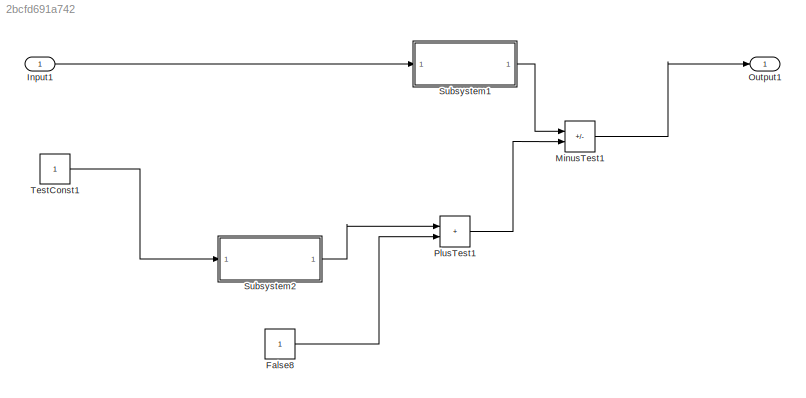
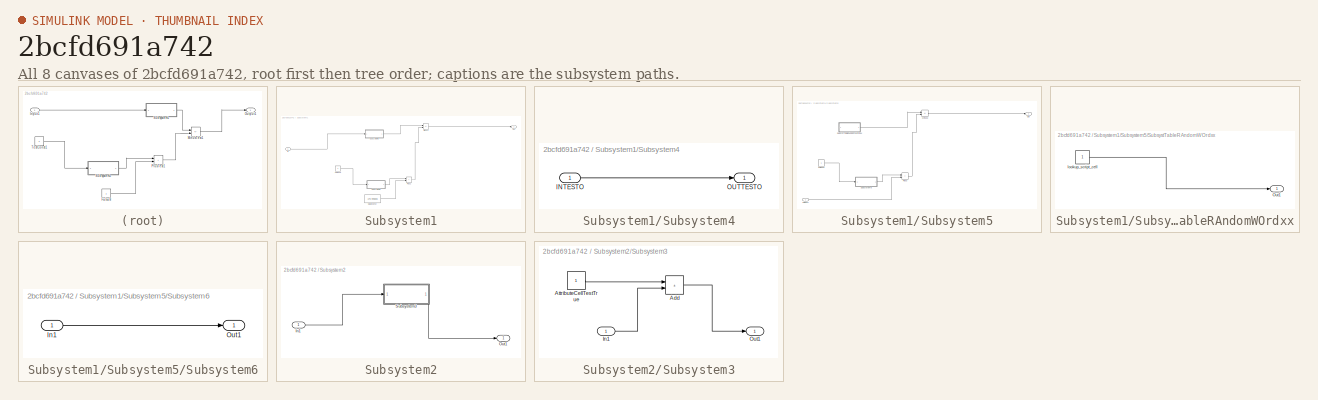
[diagram: thumbnail index - all 8 canvases of the model, root first then tree order]
MODEL slx_2bcfd691a742
KIND model
CONFIG AbsTol = auto
CONFIG EnableMultiTasking = off
CONFIG FixedStep = auto
CONFIG MaxStep = auto
CONFIG MinStep = auto
CONFIG RelTol = 1e-3
CONFIG SampleTimeConstraint = Unconstrained
CONFIG SolverName = VariableStepAuto
CONFIG StartTime = 0.0
CONFIG StopTime = 10.0
BLOCK [Constant] False8
BLOCK [Inport] Input1
BLOCK [Sum] MinusTest1
  IconShape = rectangular
  Inputs = +-
BLOCK [Outport] Output1
BLOCK [Sum] PlusTest1
  IconShape = rectangular
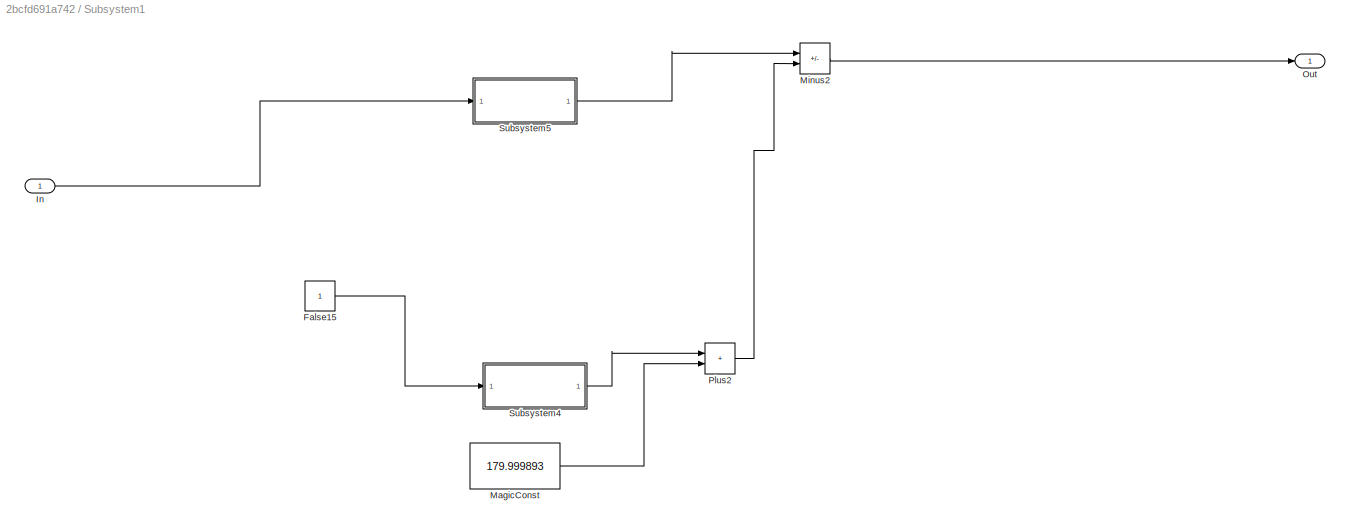
BLOCK [SubSystem] Subsystem1
BLOCK [Constant] Subsystem1/False15
BLOCK [Inport] Subsystem1/In
BLOCK [Constant] Subsystem1/MagicConst
  Value = 179.999893
BLOCK [Sum] Subsystem1/Minus2
  IconShape = rectangular
  Inputs = +-
BLOCK [Outport] Subsystem1/Out
BLOCK [Sum] Subsystem1/Plus2
  IconShape = rectangular
BLOCK [SubSystem] Subsystem1/Subsystem4
BLOCK [Inport] Subsystem1/Subsystem4/INTESTO
BLOCK [Outport] Subsystem1/Subsystem4/OUTTESTO
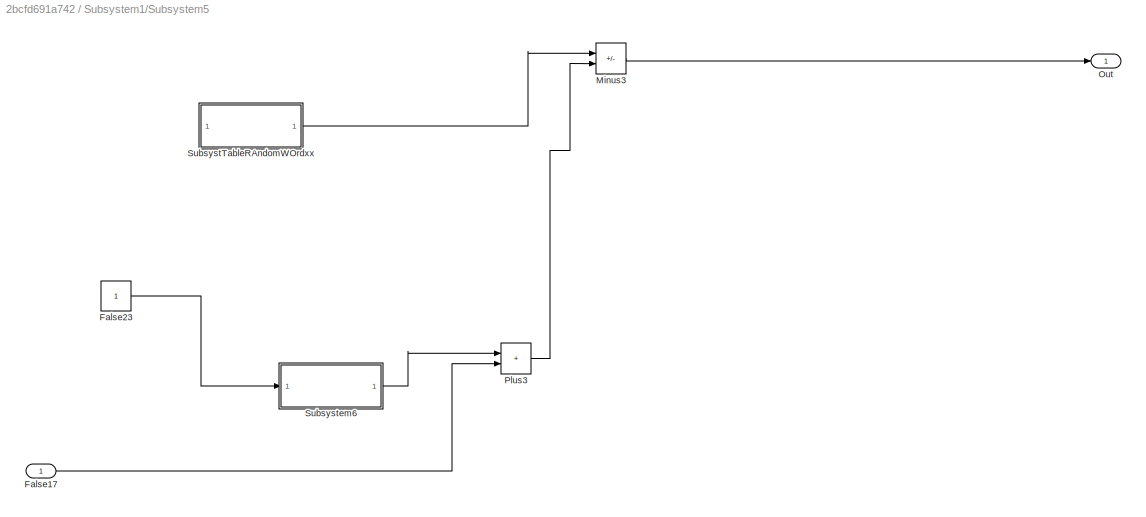
BLOCK [SubSystem] Subsystem1/Subsystem5
BLOCK [Inport] Subsystem1/Subsystem5/False17
BLOCK [Constant] Subsystem1/Subsystem5/False23
BLOCK [Sum] Subsystem1/Subsystem5/Minus3
  IconShape = rectangular
  Inputs = +-
BLOCK [Outport] Subsystem1/Subsystem5/Out
BLOCK [Sum] Subsystem1/Subsystem5/Plus3
  IconShape = rectangular
BLOCK [SubSystem] Subsystem1/Subsystem5/SubsystTableRAndomWOrdxx
BLOCK [Outport] Subsystem1/Subsystem5/SubsystTableRAndomWOrdxx/Out1
BLOCK [Constant] Subsystem1/Subsystem5/SubsystTableRAndomWOrdxx/lookup_script_cell
BLOCK [SubSystem] Subsystem1/Subsystem5/Subsystem6
BLOCK [Inport] Subsystem1/Subsystem5/Subsystem6/In1
BLOCK [Outport] Subsystem1/Subsystem5/Subsystem6/Out1
BLOCK [SubSystem] Subsystem2
BLOCK [Inport] Subsystem2/In1
BLOCK [Outport] Subsystem2/Out1
BLOCK [SubSystem] Subsystem2/Subsystem3
BLOCK [Sum] Subsystem2/Subsystem3/Add
  IconShape = rectangular
BLOCK [Constant] Subsystem2/Subsystem3/AttributeCellTestTrue
BLOCK [Inport] Subsystem2/Subsystem3/In1
BLOCK [Outport] Subsystem2/Subsystem3/Out1
BLOCK [Constant] TestConst1
LINE False8:1 -> PlusTest1:2
LINE Input1:1 -> Subsystem1:1
LINE MinusTest1:1 -> Output1:1
LINE PlusTest1:1 -> MinusTest1:2
LINE Subsystem1/False15:1 -> Subsystem1/Subsystem4:1
LINE Subsystem1/In:1 -> Subsystem1/Subsystem5:1
LINE Subsystem1/MagicConst:1 -> Subsystem1/Plus2:2
LINE Subsystem1/Minus2:1 -> Subsystem1/Out:1
LINE Subsystem1/Plus2:1 -> Subsystem1/Minus2:2
LINE Subsystem1/Subsystem4/INTESTO:1 -> Subsystem1/Subsystem4/OUTTESTO:1
LINE Subsystem1/Subsystem4:1 -> Subsystem1/Plus2:1
LINE Subsystem1/Subsystem5/False17:1 -> Subsystem1/Subsystem5/Plus3:2
LINE Subsystem1/Subsystem5/False23:1 -> Subsystem1/Subsystem5/Subsystem6:1
LINE Subsystem1/Subsystem5/Minus3:1 -> Subsystem1/Subsystem5/Out:1
LINE Subsystem1/Subsystem5/Plus3:1 -> Subsystem1/Subsystem5/Minus3:2
LINE Subsystem1/Subsystem5/SubsystTableRAndomWOrdxx/lookup_script_cell:1 -> Subsystem1/Subsystem5/SubsystTableRAndomWOrdxx/Out1:1
LINE Subsystem1/Subsystem5/SubsystTableRAndomWOrdxx:1 -> Subsystem1/Subsystem5/Minus3:1
LINE Subsystem1/Subsystem5/Subsystem6/In1:1 -> Subsystem1/Subsystem5/Subsystem6/Out1:1
LINE Subsystem1/Subsystem5/Subsystem6:1 -> Subsystem1/Subsystem5/Plus3:1
LINE Subsystem1/Subsystem5:1 -> Subsystem1/Minus2:1
LINE Subsystem1:1 -> MinusTest1:1
LINE Subsystem2/In1:1 -> Subsystem2/Subsystem3:1
LINE Subsystem2/Subsystem3/Add:1 -> Subsystem2/Subsystem3/Out1:1
LINE Subsystem2/Subsystem3/AttributeCellTestTrue:1 -> Subsystem2/Subsystem3/Add:1
LINE Subsystem2/Subsystem3/In1:1 -> Subsystem2/Subsystem3/Add:2
LINE Subsystem2/Subsystem3:1 -> Subsystem2/Out1:1
LINE Subsystem2:1 -> PlusTest1:1
LINE TestConst1:1 -> Subsystem2:1
